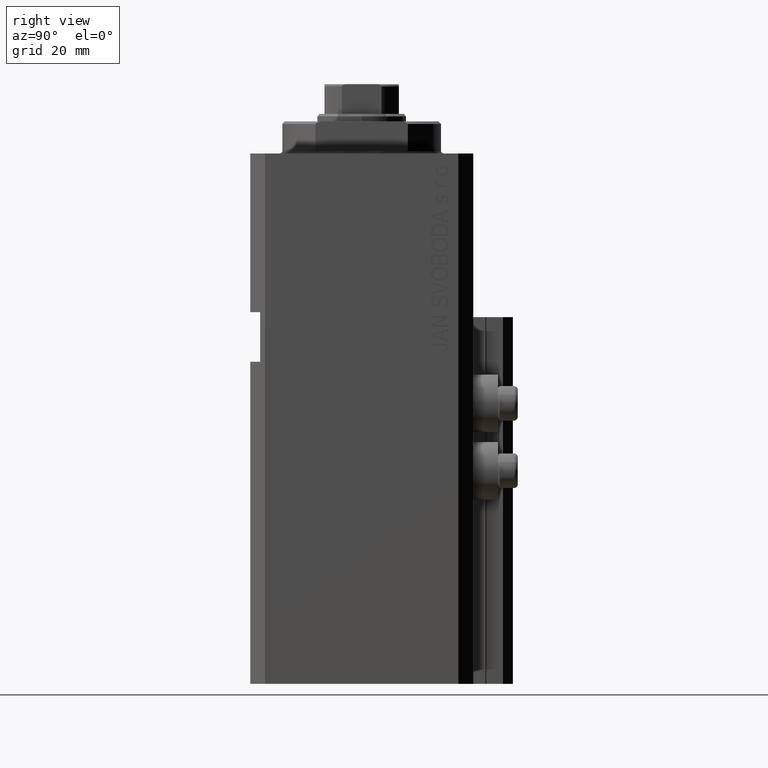
[diagram: clean part render]
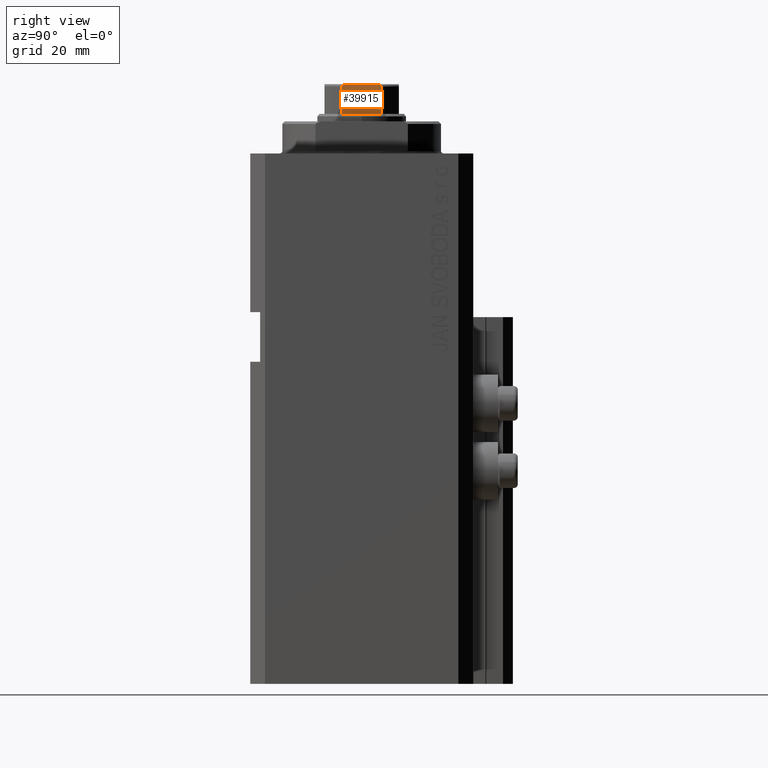
[diagram: same view with one face highlighted and labeled with its STEP entity id]
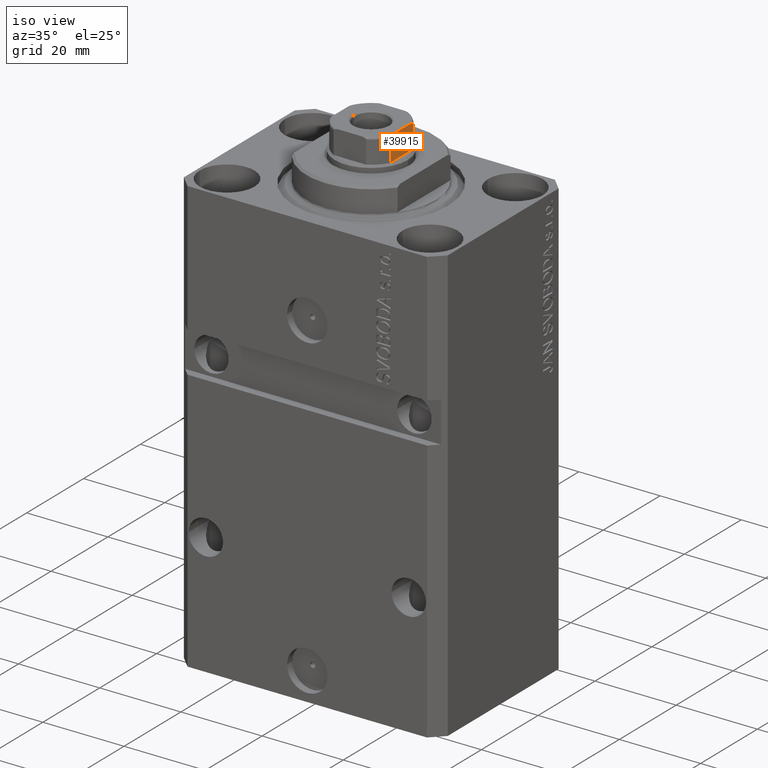
[diagram: same view with one face highlighted and labeled with its STEP entity id]
A machine part, right view. The second image highlights one B-rep face of the part: STEP entity #39915.
A second angle (iso view) of the same face is appended — the face is thin or edge-on in the first view.
In plain terms, the highlighted planar face has unit normal (-1, 0, 0).
Its self-contained STEP definition (entity closure, byte-faithful):
#126 = EDGE_CURVE ( 'NONE', #9316, #26595, #12913, .T. ) ;
#662 = LINE ( 'NONE', #5245, #33397 ) ;
#2368 = CARTESIAN_POINT ( 'NONE',  ( 7.500000000000002665, -3.857502111569842018, 113.8517335996921389 ) ) ;
#2541 = CARTESIAN_POINT ( 'NONE',  ( 7.500000000000000000, -4.000000000000002665, -0.001000000000001000089 ) ) ;
#3024 = EDGE_CURVE ( 'NONE', #34790, #43250, #34934, .T. ) ;
#3116 = VECTOR ( 'NONE', #32758, 1000.000000000000000 ) ;
#3139 = EDGE_CURVE ( 'NONE', #28780, #26595, #23598, .T. ) ;
#3285 = ORIENTED_EDGE ( 'NONE', *, *, #25887, .F. ) ;
#4014 = CARTESIAN_POINT ( 'NONE',  ( 7.500000000000000000, -4.000000000000002665, 113.6000000000000085 ) ) ;
#5245 = CARTESIAN_POINT ( 'NONE',  ( 7.500000000000001776, 7.500000000000000000, 108.1000000000000085 ) ) ;
#5910 = EDGE_LOOP ( 'NONE', ( #3285, #21420, #28242, #36378, #8084, #42629 ) ) ;
#5940 = DIRECTION ( 'NONE',  ( -1.000000000000000000, 1.156482317317871478E-16, 0.000000000000000000 ) ) ;
#6466 = CARTESIAN_POINT ( 'NONE',  ( 7.500000000000000000, -3.710689790367151630, 113.9481211817342512 ) ) ;
#8084 = ORIENTED_EDGE ( 'NONE', *, *, #3024, .T. ) ;
#8426 = CARTESIAN_POINT ( 'NONE',  ( 7.500000000000001776, 3.020011215871893029, 114.0999999999999943 ) ) ;
#9036 = EDGE_CURVE ( 'NONE', #43250, #31870, #27918, .T. ) ;
#9316 = VERTEX_POINT ( 'NONE', #13856 ) ;
#9368 = CARTESIAN_POINT ( 'NONE',  ( 7.500000000000001776, 3.999999999999998224, -0.001000000000001000089 ) ) ;
#10087 = CARTESIAN_POINT ( 'NONE',  ( 7.499999999999999112, -3.598393151503776366, 113.9901219192740882 ) ) ;
#10560 = LINE ( 'NONE', #43354, #3116 ) ;
#11996 = VECTOR ( 'NONE', #24087, 1000.000000000000000 ) ;
#12913 = LINE ( 'NONE', #2541, #38843 ) ;
#13699 = CARTESIAN_POINT ( 'NONE',  ( 7.500000000000001776, -3.020030562295400234, 114.1000000000000227 ) ) ;
#13856 = CARTESIAN_POINT ( 'NONE',  ( 7.500000000000000000, -4.000000000000002665, 108.0999999999999943 ) ) ;
#14674 = CARTESIAN_POINT ( 'NONE',  ( 7.500000000000000888, 2.783882181415007206, 114.1000000000000085 ) ) ;
#16403 = CARTESIAN_POINT ( 'NONE',  ( 7.500000000000000888, 3.708875323752952369, 113.9493035205546221 ) ) ;
#16564 = FACE_OUTER_BOUND ( 'NONE', #5910, .T. ) ;
#21420 = ORIENTED_EDGE ( 'NONE', *, *, #3139, .T. ) ;
#21671 = CARTESIAN_POINT ( 'NONE',  ( 7.500000000000000000, -4.000000000000207834, 113.6603418620520785 ) ) ;
#23161 = CARTESIAN_POINT ( 'NONE',  ( 7.500000000000000888, 2.783882181415007206, 114.1000000000000085 ) ) ;
#23393 = CARTESIAN_POINT ( 'NONE',  ( 7.500000000000000888, 3.597188386589924569, 113.9905284339323970 ) ) ;
#23598 = B_SPLINE_CURVE_WITH_KNOTS ( 'NONE', 3,
 ( #35412, #13699, #43116, #10087, #6466, #2368, #46487, #39511, #21671, #4014 ),
 .UNSPECIFIED., .F., .F.,
 ( 4, 2, 2, 2, 4 ),
 ( 4.336808689942017736E-19, 0.0007049202178653984040, 0.001057380326798102593, 0.001233610381264454254, 0.001409840435730806999 ),
 .UNSPECIFIED. ) ;
#24087 = DIRECTION ( 'NONE',  ( -0.000000000000000000, -0.000000000000000000, 1.000000000000000000 ) ) ;
#24271 = PLANE ( 'NONE',  #37544 ) ;
#25473 = DIRECTION ( 'NONE',  ( -1.156482317317871478E-16, -1.000000000000000000, 0.000000000000000000 ) ) ;
#25887 = EDGE_CURVE ( 'NONE', #28780, #31870, #10560, .T. ) ;
#26595 = VERTEX_POINT ( 'NONE', #34000 ) ;
#27918 = B_SPLINE_CURVE_WITH_KNOTS ( 'NONE', 3,
 ( #31115, #34732, #30640, #30384, #38814, #16403, #23393, #45318, #8426, #23161 ),
 .UNSPECIFIED., .F., .F.,
 ( 4, 2, 2, 2, 4 ),
 ( 0.000000000000000000, 0.0001779688448868775293, 0.0003559376897737542996, 0.0007118753795475305001, 0.001423750759095082901 ),
 .UNSPECIFIED. ) ;
#28242 = ORIENTED_EDGE ( 'NONE', *, *, #126, .F. ) ;
#28780 = VERTEX_POINT ( 'NONE', #39557 ) ;
#30384 = CARTESIAN_POINT ( 'NONE',  ( 7.500000000000001776, 3.904208668232356683, 113.8127813453749582 ) ) ;
#30640 = CARTESIAN_POINT ( 'NONE',  ( 7.500000000000000888, 3.976018255615929142, 113.7172619930099131 ) ) ;
#31115 = CARTESIAN_POINT ( 'NONE',  ( 7.500000000000001776, 3.999999999999998224, 113.6000000000000085 ) ) ;
#31870 = VERTEX_POINT ( 'NONE', #14674 ) ;
#32758 = DIRECTION ( 'NONE',  ( 1.156482317317871478E-16, 1.000000000000000000, -0.000000000000000000 ) ) ;
#33397 = VECTOR ( 'NONE', #41654, 1000.000000000000000 ) ;
#33552 = CARTESIAN_POINT ( 'NONE',  ( 7.500000000000001776, 3.999999999999998224, 113.6000000000000085 ) ) ;
#33883 = EDGE_CURVE ( 'NONE', #9316, #34790, #662, .T. ) ;
#34000 = CARTESIAN_POINT ( 'NONE',  ( 7.500000000000000000, -4.000000000000002665, 113.6000000000000085 ) ) ;
#34641 = DIRECTION ( 'NONE',  ( -0.000000000000000000, -0.000000000000000000, 1.000000000000000000 ) ) ;
#34732 = CARTESIAN_POINT ( 'NONE',  ( 7.500000000000000888, 3.999999999999998224, 113.6602639680043438 ) ) ;
#34790 = VERTEX_POINT ( 'NONE', #46579 ) ;
#34934 = LINE ( 'NONE', #9368, #11996 ) ;
#35412 = CARTESIAN_POINT ( 'NONE',  ( 7.500000000000000888, -2.783882181415009427, 114.1000000000000085 ) ) ;
#36378 = ORIENTED_EDGE ( 'NONE', *, *, #33883, .T. ) ;
#37544 = AXIS2_PLACEMENT_3D ( 'NONE', #38982, #5940, #25473 ) ;
#38814 = CARTESIAN_POINT ( 'NONE',  ( 7.500000000000000888, 3.858352854028593182, 113.8511795160315643 ) ) ;
#38843 = VECTOR ( 'NONE', #34641, 1000.000000000000000 ) ;
#38982 = CARTESIAN_POINT ( 'NONE',  ( 7.500000000000001776, 7.500000000000000000, 114.1000000000000085 ) ) ;
#39511 = CARTESIAN_POINT ( 'NONE',  ( 7.499999999999999112, -3.975735230428941946, 113.7177304131977849 ) ) ;
#39557 = CARTESIAN_POINT ( 'NONE',  ( 7.500000000000000888, -2.783882181415009427, 114.1000000000000085 ) ) ;
#39915 = ADVANCED_FACE ( 'NONE', ( #16564 ), #24271, .F. ) ;
#41654 = DIRECTION ( 'NONE',  ( 1.156482317317871478E-16, 1.000000000000000000, -0.000000000000000000 ) ) ;
#42629 = ORIENTED_EDGE ( 'NONE', *, *, #9036, .T. ) ;
#43116 = CARTESIAN_POINT ( 'NONE',  ( 7.500000000000004441, -3.255843148148204413, 114.0826237872687443 ) ) ;
#43250 = VERTEX_POINT ( 'NONE', #33552 ) ;
#43354 = CARTESIAN_POINT ( 'NONE',  ( 7.500000000000001776, 7.500000000000000000, 114.1000000000000085 ) ) ;
#45318 = CARTESIAN_POINT ( 'NONE',  ( 7.500000000000001776, 3.254991323038174844, 114.0826902844315640 ) ) ;
#46487 = CARTESIAN_POINT ( 'NONE',  ( 7.500000000000001776, -3.904072061442343866, 113.8128705689080959 ) ) ;
#46579 = CARTESIAN_POINT ( 'NONE',  ( 7.500000000000001776, 3.999999999999998224, 108.0999999999999943 ) ) ;